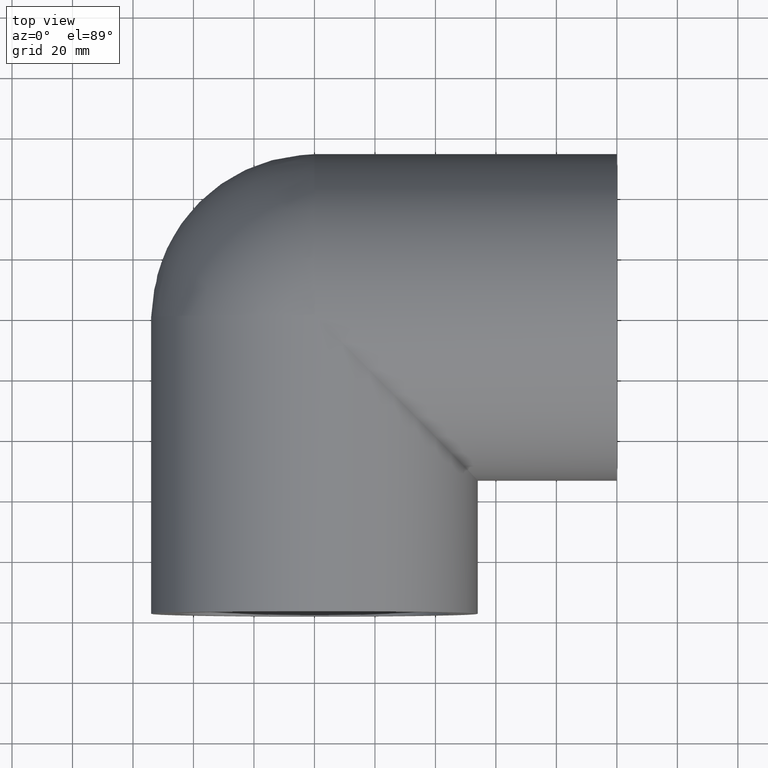
[diagram: clean part render]
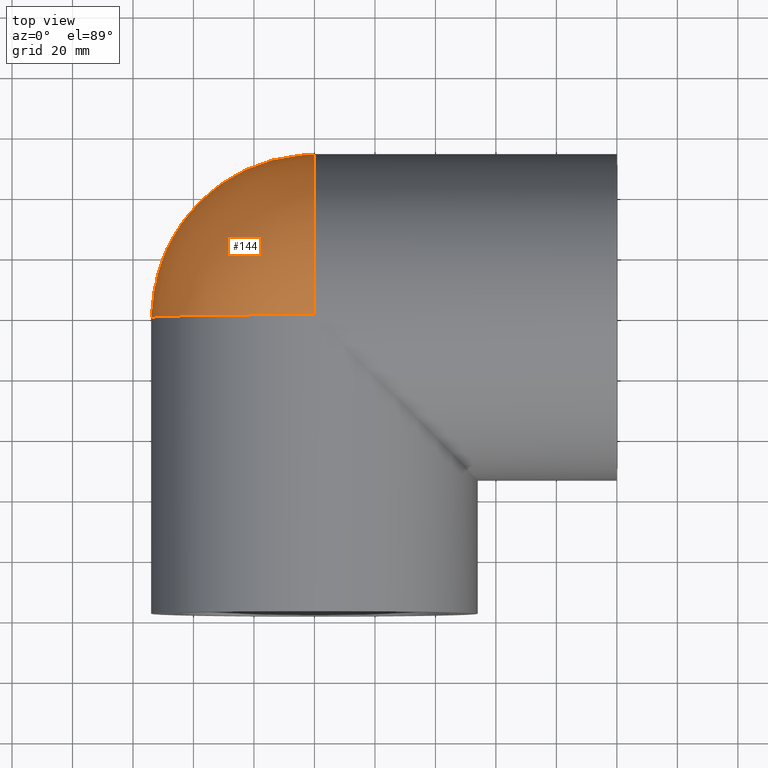
[diagram: same view with one face highlighted and labeled with its STEP entity id]
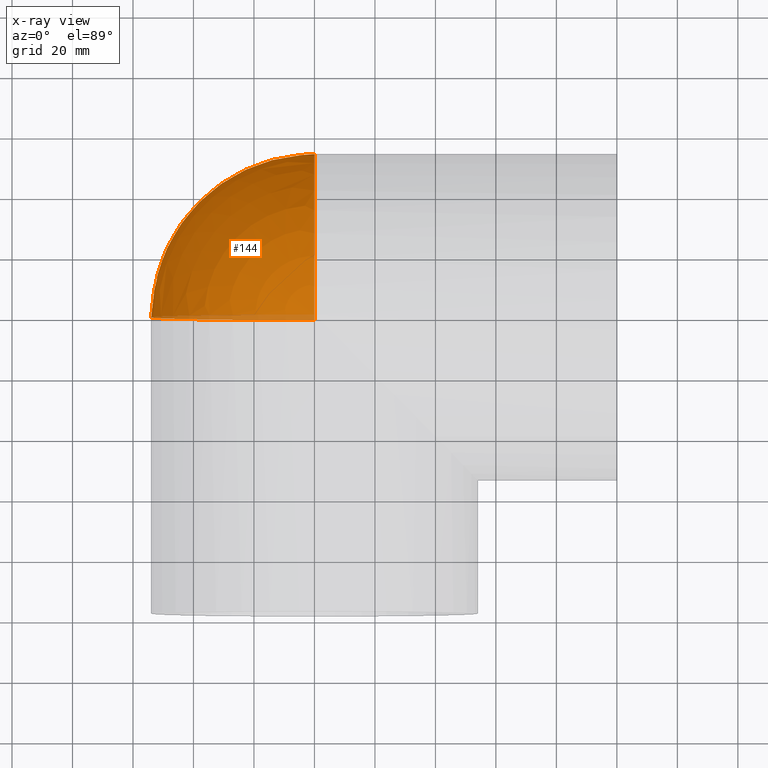
[diagram: x-ray of the same camera — body ghosted, the highlighted face saturated]
A machine part, top view. The second image highlights one B-rep face of the part: STEP entity #144.
The next image is the same camera in x-ray: the body ghosted, the highlighted face saturated — about 3% of this face is hidden behind the body in this view.
In plain terms, the highlighted spherical surface has radius 54 mm.
Its self-contained STEP definition (entity closure, byte-faithful):
#16=SPHERICAL_SURFACE('',#166,54.);
#40=FACE_OUTER_BOUND('',#59,.T.);
#59=EDGE_LOOP('',(#119,#120));
#76=CIRCLE('',#167,54.);
#77=CIRCLE('',#168,54.);
#88=VERTEX_POINT('',#253);
#89=VERTEX_POINT('',#254);
#100=EDGE_CURVE('',#88,#89,#76,.T.);
#101=EDGE_CURVE('',#88,#89,#77,.T.);
#119=ORIENTED_EDGE('',*,*,#100,.F.);
#120=ORIENTED_EDGE('',*,*,#101,.T.);
#144=ADVANCED_FACE('',(#40),#16,.T.);
#166=AXIS2_PLACEMENT_3D('',#252,#208,#209);
#167=AXIS2_PLACEMENT_3D('',#255,#210,#211);
#168=AXIS2_PLACEMENT_3D('',#256,#212,#213);
#208=DIRECTION('center_axis',(6.12323399573676E-17,0.,1.));
#209=DIRECTION('ref_axis',(1.,0.,0.));
#210=DIRECTION('center_axis',(1.,0.,0.));
#211=DIRECTION('ref_axis',(0.,0.,-1.));
#212=DIRECTION('center_axis',(-1.22464679914735E-16,1.,0.));
#213=DIRECTION('ref_axis',(1.,1.22464679914735E-16,0.));
#252=CARTESIAN_POINT('Origin',(-1.98392781461871E-14,0.,0.));
#253=CARTESIAN_POINT('',(-1.98392781461871E-14,-1.61974056527481E-30,-54.));
#254=CARTESIAN_POINT('',(-1.98392781461871E-14,-1.61974056527481E-30,54.));
#255=CARTESIAN_POINT('Origin',(-1.77635683940025E-14,0.,0.));
#256=CARTESIAN_POINT('Origin',(0.,0.,0.));